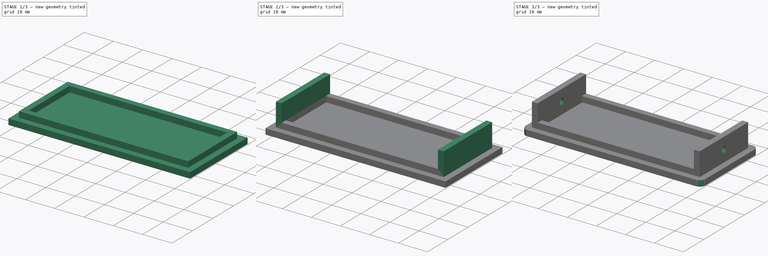
[diagram: build sequence overview — one tinted view per stage of 3, left to right]
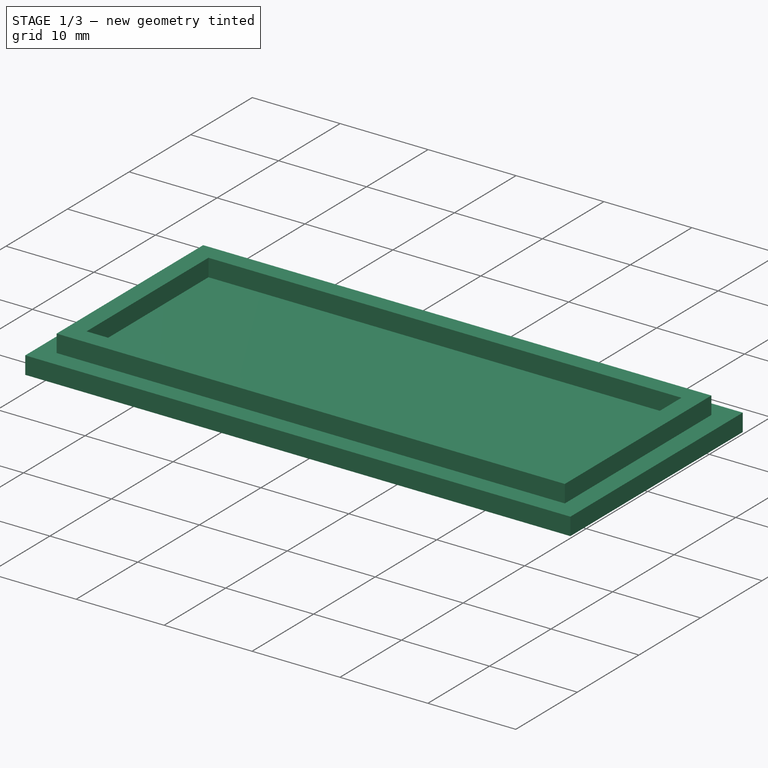
[diagram: stage 1 of 3 — iso view after this stage's code; geometry added in this stage tinted green]
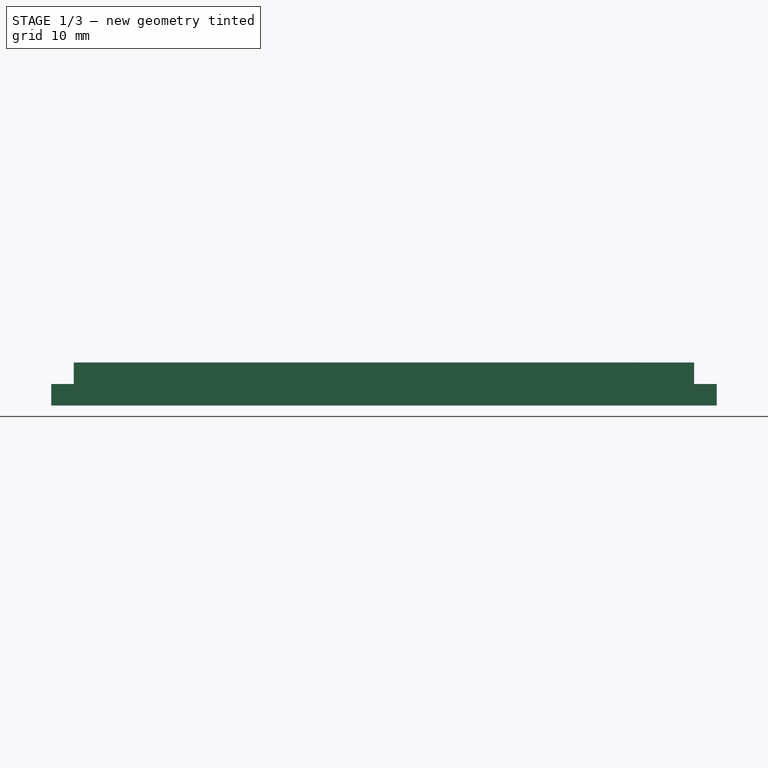
[diagram: stage 1 of 3 — front view after this stage's code; geometry added in this stage tinted green]
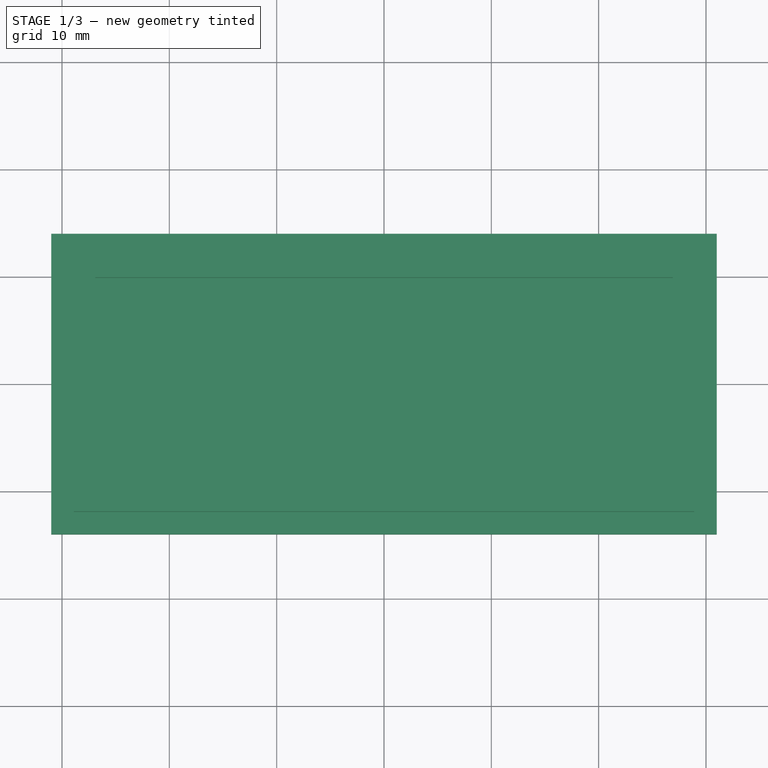
[diagram: stage 1 of 3 — top view after this stage's code; geometry added in this stage tinted green]
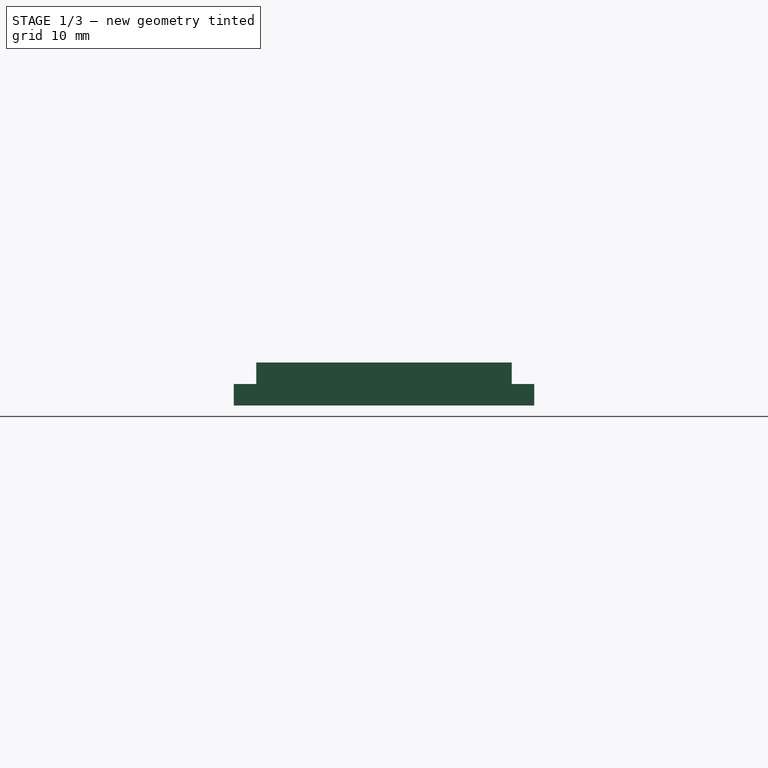
[diagram: stage 1 of 3 — right view after this stage's code; geometry added in this stage tinted green]
FCSTD DOCUMENT  (FreeCAD 0.22R38127 (Git))
Label: keyboard battery cover lid
License: All rights reserved
LicenseURL: http://en.wikipedia.org/wiki/All_rights_reserved
objects: Sketcher::SketchObject×4, PartDesign::Pad×3, PartDesign::Pocket×1, PartDesign::Fillet×1, PartDesign::Body×1
note: 15 computed .brp shape members not serialized (recipe doc carries the construction recipe); baked Part::Feature solids carry a one-line shape summary decoded from their .brp

FEATURE [Sketcher::SketchObject] Sketch
  AttachmentSupport = -> [XY_Plane]
  FullyConstrained = true
  MapMode = 5
  sketch-geometry (6):
    g0: GeomPoint X=0 Y=0 Z=0
    g1: LineSegment StartX=-31 StartY=14 StartZ=0 EndX=-31 EndY=-14 EndZ=0
    g2: LineSegment StartX=-31 StartY=-14 StartZ=0 EndX=31 EndY=-14 EndZ=0
    g3: LineSegment StartX=31 StartY=-14 StartZ=0 EndX=31 EndY=14 EndZ=0
    g4: LineSegment StartX=31 StartY=14 StartZ=0 EndX=-31 EndY=14 EndZ=0
    g5: GeomPoint X=0 Y=0 Z=0
  constraints (13):
    c: Coincident(g0,g-1)
    c: Coincident(g1,g2)
    c: Coincident(g2,g3)
    c: Coincident(g3,g4)
    c: Coincident(g4,g1)
    c: Vertical(g1)
    c: Vertical(g3)
    c: Horizontal(g2)
    c: Horizontal(g4)
    c: Symmetric(g3,g1,g5)
    c: Coincident(g5,g0)
    c: DistanceX(g4,g4) = 62
    c: DistanceY(g1,g1) = 28
FEATURE [PartDesign::Pad] Pad
  Direction = (0,0,1)
  Length = 2
  Length2 = 10
  Profile = -> Sketch
  ReferenceAxis = -> Sketch [N_Axis]
  Refine = true
  Suppressed = false
  Type = 0
FEATURE [Sketcher::SketchObject] Sketch001
  AttachmentSupport = -> [XY_Plane]
  FullyConstrained = true
  MapMode = 5
  sketch-geometry (11):
    g0: LineSegment StartX=-28.9 StartY=11.9 StartZ=0 EndX=-28.9 EndY=-11.9 EndZ=0
    g1: LineSegment StartX=-28.9 StartY=-11.9 StartZ=0 EndX=28.9 EndY=-11.9 EndZ=0
    g2: LineSegment StartX=28.9 StartY=-11.9 StartZ=0 EndX=28.9 EndY=11.9 EndZ=0
    g3: LineSegment StartX=28.9 StartY=11.9 StartZ=0 EndX=-28.9 EndY=11.9 EndZ=0
    g4: GeomPoint X=0 Y=0 Z=0
    g5: GeomPoint X=0 Y=0 Z=0
    g6: LineSegment StartX=-26.9 StartY=9.9 StartZ=0 EndX=-26.9 EndY=-9.9 EndZ=0
    g7: LineSegment StartX=-26.9 StartY=-9.9 StartZ=0 EndX=26.9 EndY=-9.9 EndZ=0
    g8: LineSegment StartX=26.9 StartY=-9.9 StartZ=0 EndX=26.9 EndY=9.9 EndZ=0
    g9: LineSegment StartX=26.9 StartY=9.9 StartZ=0 EndX=-26.9 EndY=9.9 EndZ=0
    g10: GeomPoint X=0 Y=0 Z=0
  constraints (25):
    c: Coincident(g0,g1)
    c: Coincident(g1,g2)
    c: Coincident(g2,g3)
    c: Coincident(g3,g0)
    c: Vertical(g0)
    c: Vertical(g2)
    c: Horizontal(g1)
    c: Horizontal(g3)
    c: Symmetric(g2,g0,g4)
    c: Coincident(g4,g-1)
    c: Coincident(g5,g4)
    c: DistanceX(g3,g3) = 57.8
    c: DistanceY(g0,g0) = 23.8
    c: Coincident(g6,g7)
    c: Coincident(g7,g8)
    c: Coincident(g8,g9)
    c: Coincident(g9,g6)
    c: Vertical(g6)
    c: Vertical(g8)
    c: Horizontal(g7)
    c: Horizontal(g9)
    c: Symmetric(g8,g6,g10)
    c: Coincident(g10,g4)
    c: DistanceX(g0,g6) = 2
    c: DistanceY(g6,g0) = 2
FEATURE [PartDesign::Pad] Pad001
  BaseFeature = -> Pad
  Direction = (0,0,1)
  Length = 4
  Length2 = 10
  Profile = -> Sketch001
  ReferenceAxis = -> Sketch001 [N_Axis]
  Refine = true
  Suppressed = false
  Type = 0
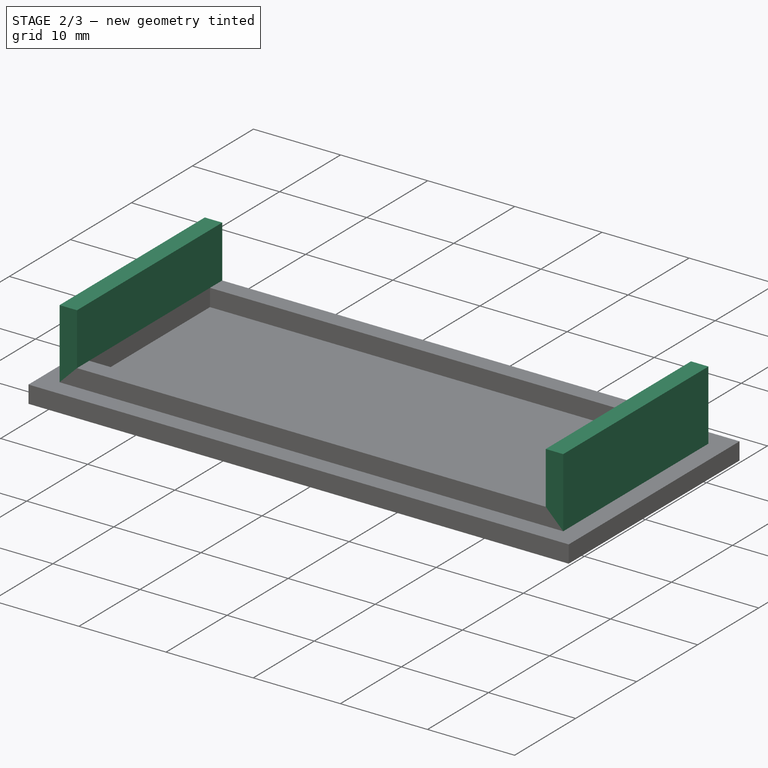
[diagram: stage 2 of 3 — iso view after this stage's code; geometry added in this stage tinted green]
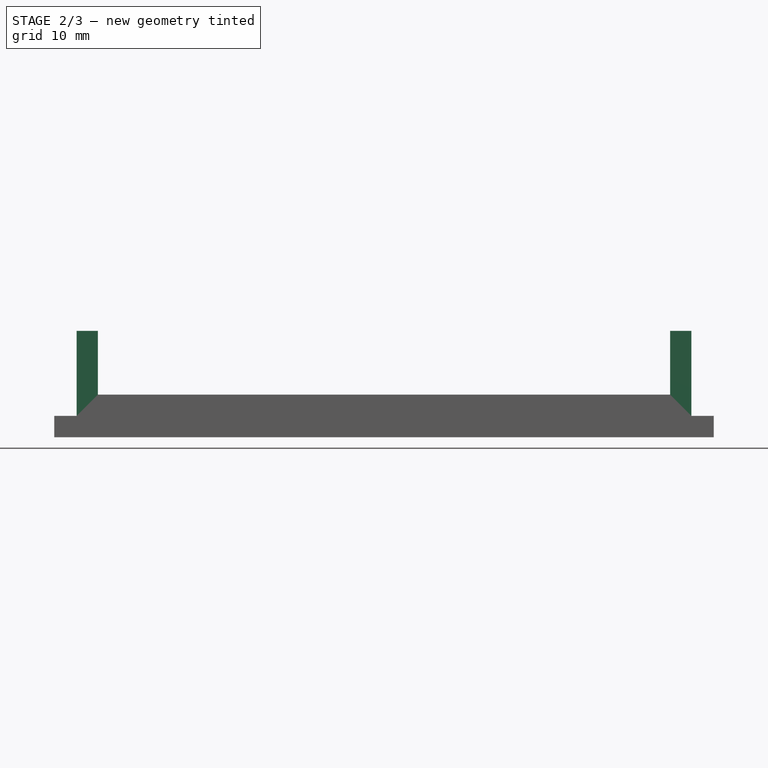
[diagram: stage 2 of 3 — front view after this stage's code; geometry added in this stage tinted green]
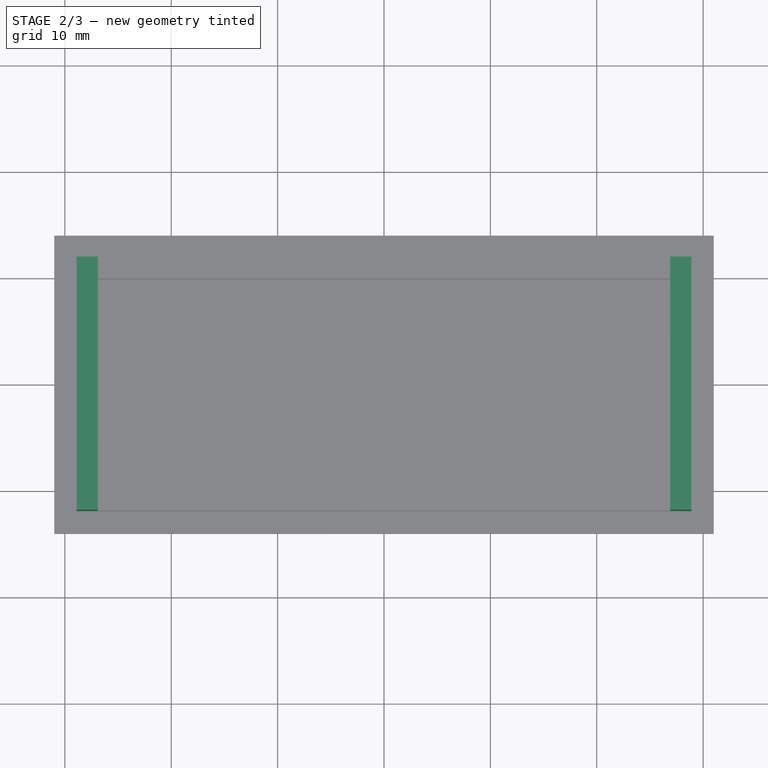
[diagram: stage 2 of 3 — top view after this stage's code; geometry added in this stage tinted green]
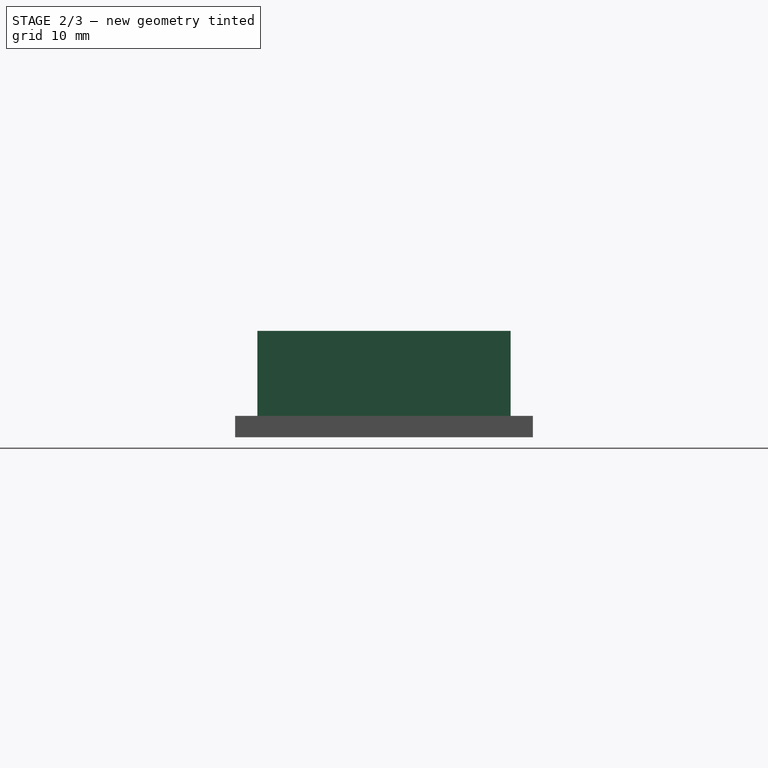
[diagram: stage 2 of 3 — right view after this stage's code; geometry added in this stage tinted green]
FEATURE [Sketcher::SketchObject] Sketch002
  AttachmentSupport = -> [XY_Plane]
  ExternalGeometry = -> [Pad001]
  FullyConstrained = true
  MapMode = 5
  sketch-geometry (11):
    g0: LineSegment StartX=-28.9 StartY=11.9 StartZ=0 EndX=-28.9 EndY=-11.9 EndZ=0
    g1: LineSegment StartX=28.9 StartY=-11.9 StartZ=0 EndX=28.9 EndY=11.9 EndZ=0
    g2: GeomPoint X=0 Y=0 Z=0
    g3: GeomPoint X=0 Y=0 Z=0
    g4: LineSegment StartX=-26.9 StartY=11.9 StartZ=0 EndX=-26.9 EndY=-11.9 EndZ=0
    g5: LineSegment StartX=26.9 StartY=-11.9 StartZ=0 EndX=26.9 EndY=11.9 EndZ=0
    g6: GeomPoint X=0 Y=0 Z=0
    g7: LineSegment StartX=-28.9 StartY=11.9 StartZ=0 EndX=-26.9 EndY=11.9 EndZ=0
    g8: LineSegment StartX=-28.9 StartY=-11.9 StartZ=0 EndX=-26.9 EndY=-11.9 EndZ=0
    g9: LineSegment StartX=28.9 StartY=-11.9 StartZ=0 EndX=26.9 EndY=-11.9 EndZ=0
    g10: LineSegment StartX=28.9 StartY=11.9 StartZ=0 EndX=26.9 EndY=11.9 EndZ=0
  constraints (24):
    c: Vertical(g0)
    c: Vertical(g1)
    c: Symmetric(g1,g0,g2)
    c: Coincident(g2,g-1)
    c: Coincident(g3,g2)
    c: DistanceY(g0,g0) = 23.8
    c: Vertical(g4)
    c: Vertical(g5)
    c: Symmetric(g5,g4,g6)
    c: Coincident(g6,g2)
    c: DistanceX(g0,g4) = 2
    c: Coincident(g7,g0)
    c: Coincident(g7,g4)
    c: Coincident(g8,g0)
    c: Coincident(g8,g4)
    c: Coincident(g9,g1)
    c: Coincident(g9,g5)
    c: Coincident(g10,g1)
    c: Coincident(g10,g5)
    c: Horizontal(g7)
    c: Coincident(g0,g-3)
    c: Horizontal(g8)
    c: Horizontal(g10)
    c: Horizontal(g5,g4)
FEATURE [PartDesign::Pad] Pad002
  BaseFeature = -> Pad001
  Direction = (0,0,1)
  Length = 10
  Length2 = 10
  Profile = -> Sketch002
  ReferenceAxis = -> Sketch002 [N_Axis]
  Refine = true
  Suppressed = false
  Type = 0
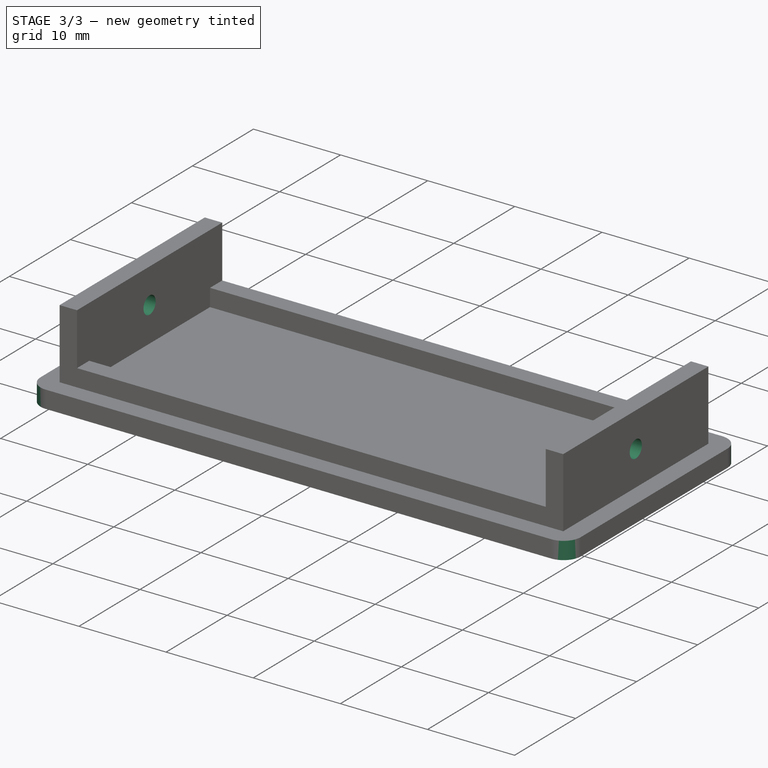
[diagram: stage 3 of 3 — iso view after this stage's code; geometry added in this stage tinted green]
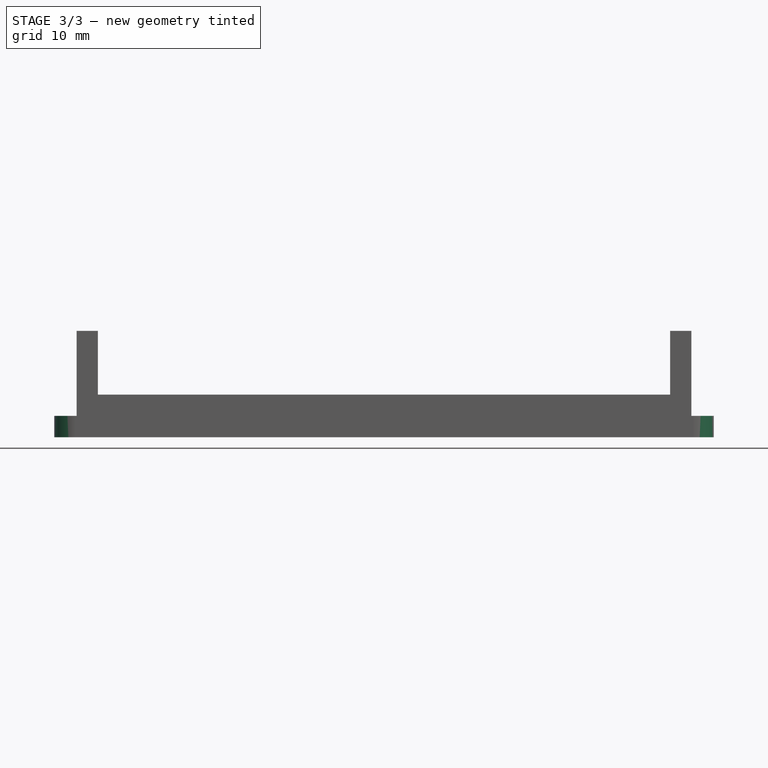
[diagram: stage 3 of 3 — front view after this stage's code; geometry added in this stage tinted green]
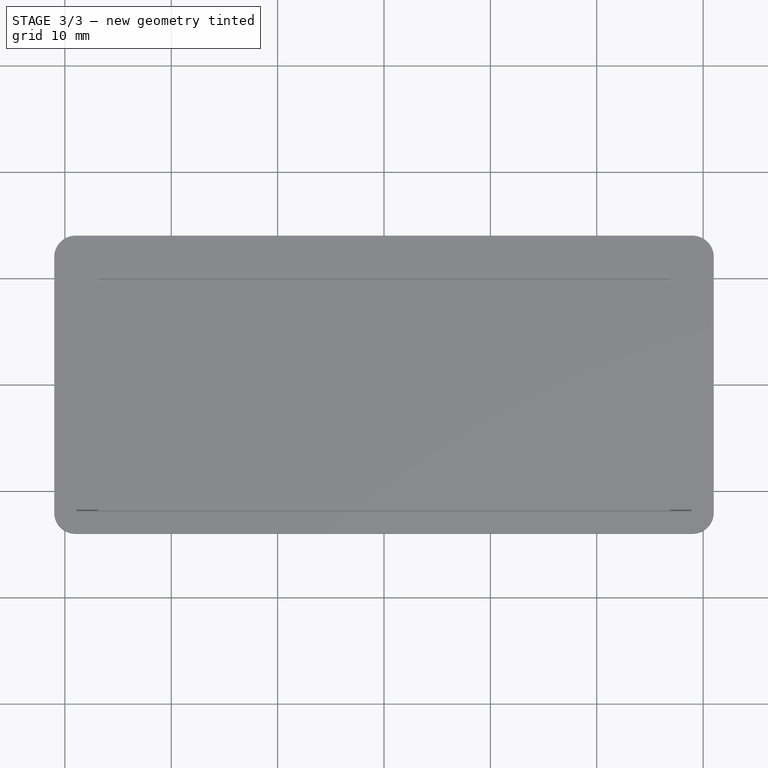
[diagram: stage 3 of 3 — top view after this stage's code; geometry added in this stage tinted green]
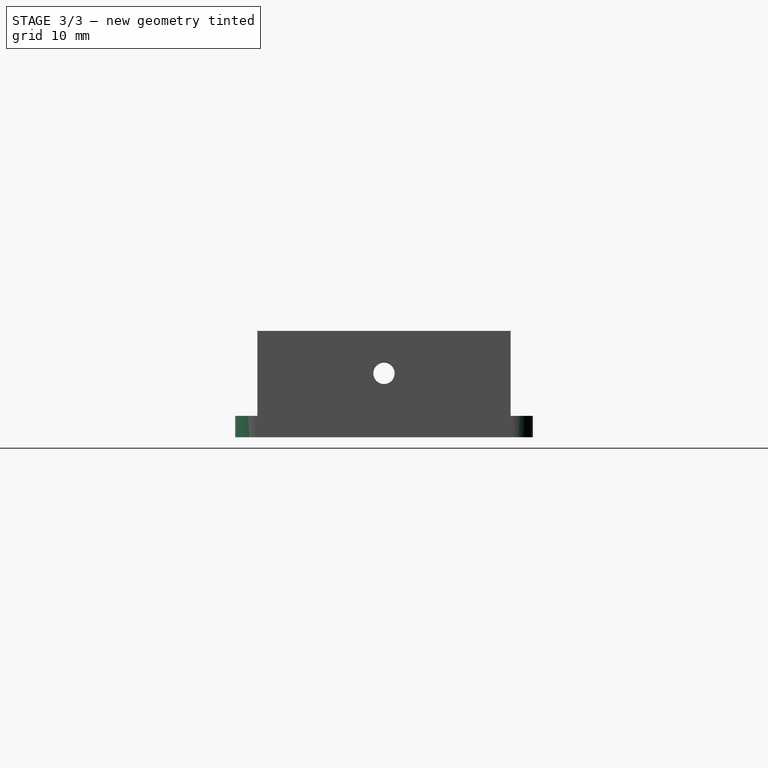
[diagram: stage 3 of 3 — right view after this stage's code; geometry added in this stage tinted green]
FEATURE [Sketcher::SketchObject] Sketch003
  AttachmentSupport = -> [YZ_Plane]
  FullyConstrained = true
  MapMode = 5
  Placement = pos=(0,0,0) rot=(0.57735,0.57735,0.57735;2.0944rad)
  sketch-geometry (1):
    g0: Circle CenterX=0 CenterY=6 CenterZ=0 NormalX=0 NormalY=0 NormalZ=1 AngleXU=0 Radius=1
  constraints (3):
    c: PointOnObject(g0,g-2)
    c: Diameter(g0) = 2
    c: DistanceY(g-1,g0) = 6
FEATURE [PartDesign::Pocket] Pocket
  BaseFeature = -> Pad002
  Direction = (-1,0,0)
  Length = 5
  Length2 = 5
  Midplane = true
  Profile = -> Sketch003
  ReferenceAxis = -> Sketch003 [N_Axis]
  Refine = true
  Suppressed = false
  Type = 1
FEATURE [PartDesign::Fillet] Fillet
  Base = -> Pocket [Edge50,Edge52,Edge47,Edge48]
  BaseFeature = -> Pocket
  Radius = 2
  Refine = true
  SupportTransform = false
  Suppressed = false
  UseAllEdges = false
FEATURE [PartDesign::Body] Body
  AllowCompound = false
  Group = -> [Sketch,Pad,Sketch001,Pad001,Sketch002,Pad002,Sketch003,Pocket,Fillet]
  Origin = -> Origin
  Tip = -> Fillet
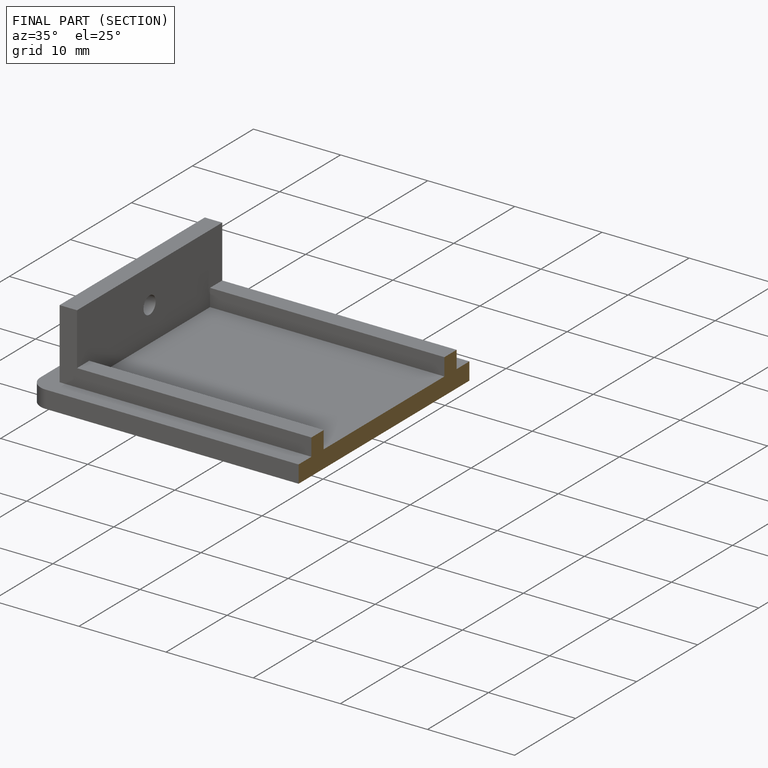
[diagram: finished part — half-section view (interior)]
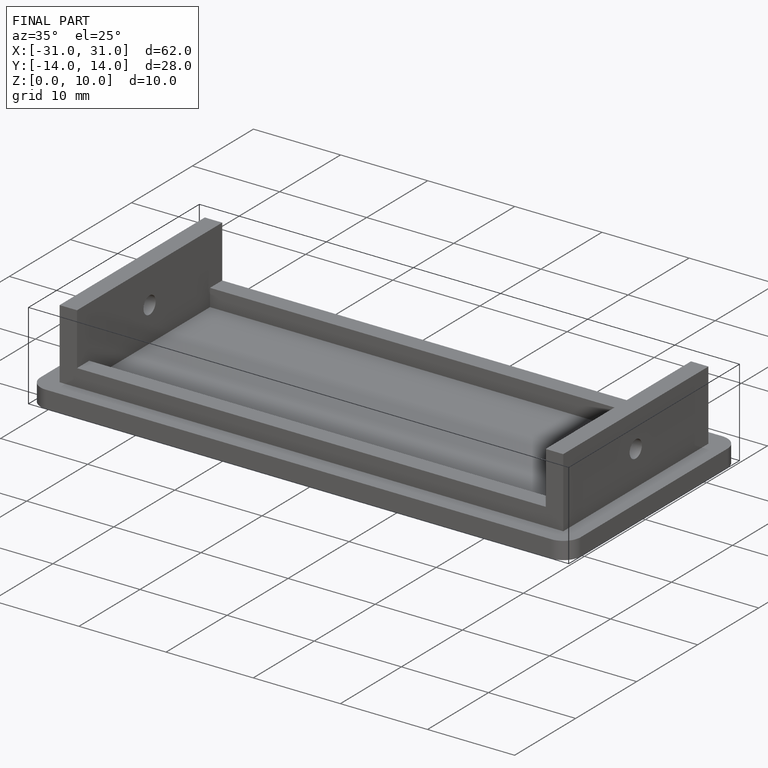
[diagram: finished part — iso view with bounding-box wireframe]
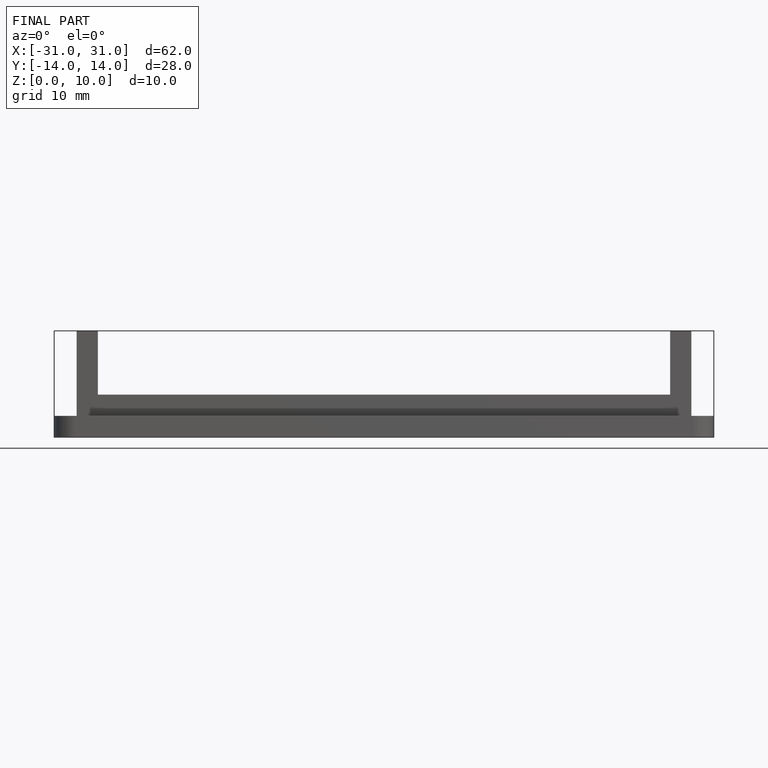
[diagram: finished part — front view with bounding-box wireframe]
